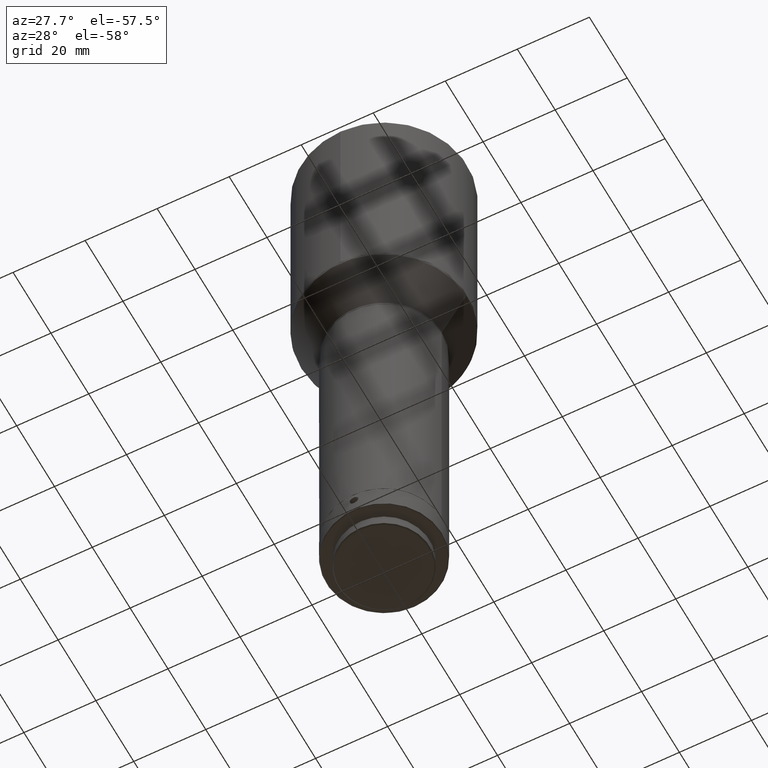
[diagram: clean part render]
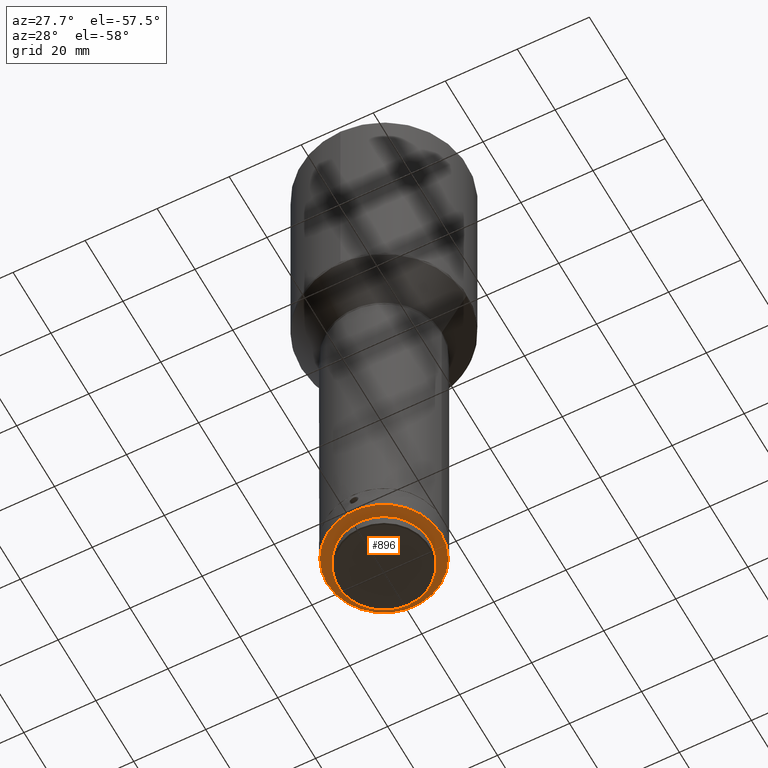
[diagram: same view with one face highlighted and labeled with its STEP entity id]
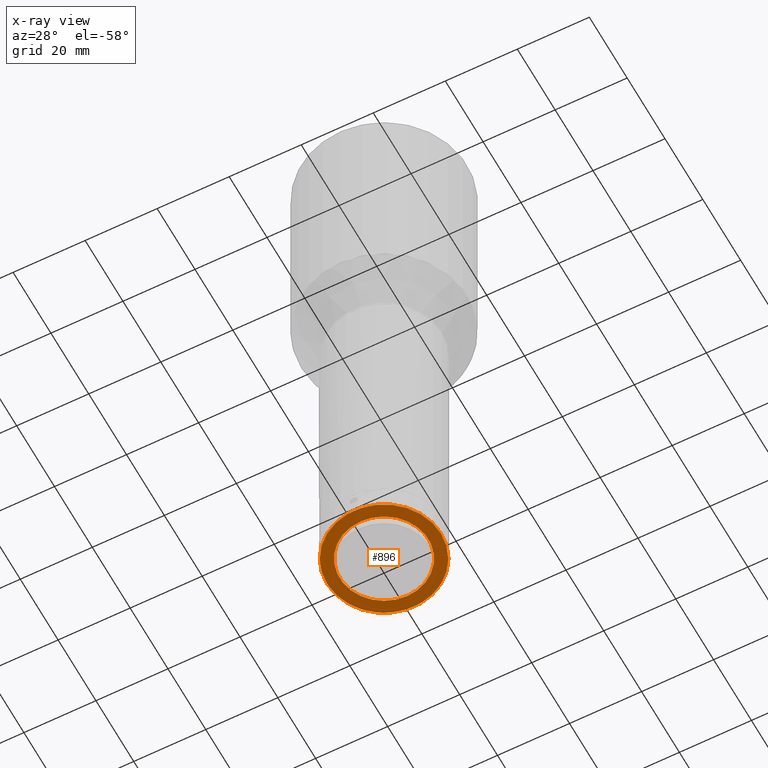
[diagram: x-ray of the same camera — body ghosted, the highlighted face saturated]
A machine part, auxiliary view. The second image highlights one B-rep face of the part: STEP entity #896.
The next image is the same camera in x-ray: the body ghosted, the highlighted face saturated — about 0% of this face is hidden behind the body in this view.
In plain terms, the highlighted planar face has unit normal (-0, 0, 1).
Its self-contained STEP definition (entity closure, byte-faithful):
#16 = DIRECTION ( 'NONE',  ( 0.000000000000000000, -1.000000000000000000, 1.417533635007167891E-17 ) ) ;
#41 = AXIS2_PLACEMENT_3D ( 'NONE', #838, #89, #16 ) ;
#82 = EDGE_LOOP ( 'NONE', ( #614 ) ) ;
#89 = DIRECTION ( 'NONE',  ( -4.589197342273597609E-33, 1.417533635007167891E-17, 1.000000000000000000 ) ) ;
#133 = DIRECTION ( 'NONE',  ( 0.000000000000000000, -0.000000000000000000, 1.000000000000000000 ) ) ;
#207 = DIRECTION ( 'NONE',  ( 1.000000000000000000, 0.000000000000000000, 0.000000000000000000 ) ) ;
#225 = DIRECTION ( 'NONE',  ( -1.153080377313159546E-32, -1.417533635007167891E-17, -1.000000000000000000 ) ) ;
#256 = PLANE ( 'NONE',  #41 ) ;
#263 = FACE_OUTER_BOUND ( 'NONE', #769, .T. ) ;
#285 = CIRCLE ( 'NONE', #342, 12.30000000000001847 ) ;
#329 = CARTESIAN_POINT ( 'NONE',  ( 15.80000000000002203, -3.075859040760137006E-14, -1113.735156000000188 ) ) ;
#342 = AXIS2_PLACEMENT_3D ( 'NONE', #648, #225, #1047 ) ;
#474 = EDGE_CURVE ( 'NONE', #1043, #1043, #285, .T. ) ;
#539 = CARTESIAN_POINT ( 'NONE',  ( -8.673617379884035472E-15, -3.075859040760137006E-14, -1113.735156000000188 ) ) ;
#596 = AXIS2_PLACEMENT_3D ( 'NONE', #539, #133, #207 ) ;
#614 = ORIENTED_EDGE ( 'NONE', *, *, #474, .F. ) ;
#631 = CARTESIAN_POINT ( 'NONE',  ( -8.482661411329578721E-15, 12.29999999999998828, -1113.735156000000188 ) ) ;
#648 = CARTESIAN_POINT ( 'NONE',  ( -8.482661411329578721E-15, -3.076142547487138986E-14, -1113.735156000000188 ) ) ;
#753 = ORIENTED_EDGE ( 'NONE', *, *, #1009, .F. ) ;
#769 = EDGE_LOOP ( 'NONE', ( #753 ) ) ;
#838 = CARTESIAN_POINT ( 'NONE',  ( -8.141267831257342769E-15, 12.29999999999999361, -1113.735156000000188 ) ) ;
#896 = ADVANCED_FACE ( 'NONE', ( #920, #263 ), #256, .F. ) ;
#920 = FACE_BOUND ( 'NONE', #82, .T. ) ;
#969 = VERTEX_POINT ( 'NONE', #329 ) ;
#1009 = EDGE_CURVE ( 'NONE', #969, #969, #1027, .T. ) ;
#1027 = CIRCLE ( 'NONE', #596, 15.80000000000002913 ) ;
#1043 = VERTEX_POINT ( 'NONE', #631 ) ;
#1047 = DIRECTION ( 'NONE',  ( 0.000000000000000000, 1.000000000000000000, 0.000000000000000000 ) ) ;